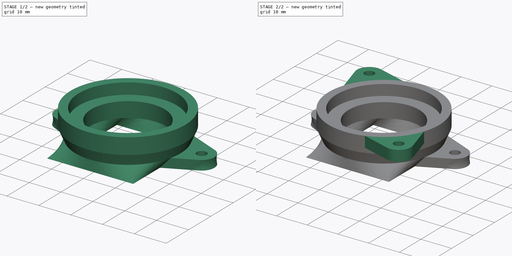
[diagram: build sequence overview — one tinted view per stage of 2, left to right]
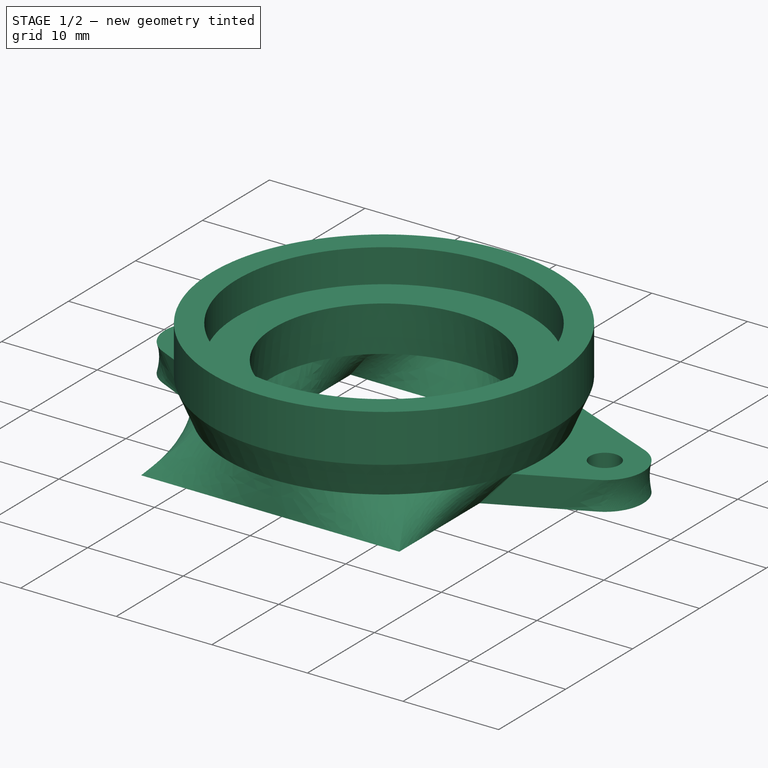
[diagram: stage 1 of 2 — iso view after this stage's code; geometry added in this stage tinted green]
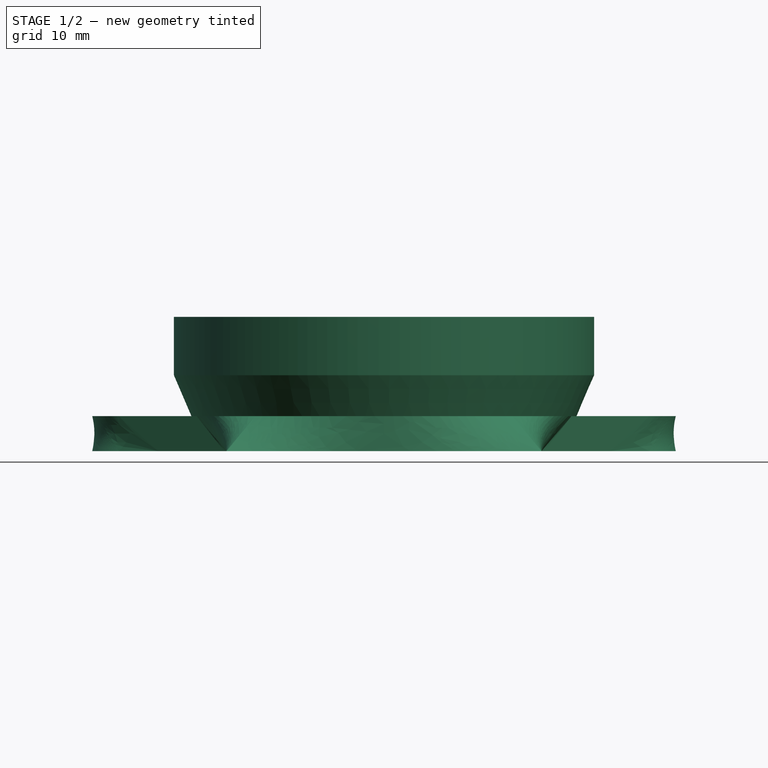
[diagram: stage 1 of 2 — front view after this stage's code; geometry added in this stage tinted green]
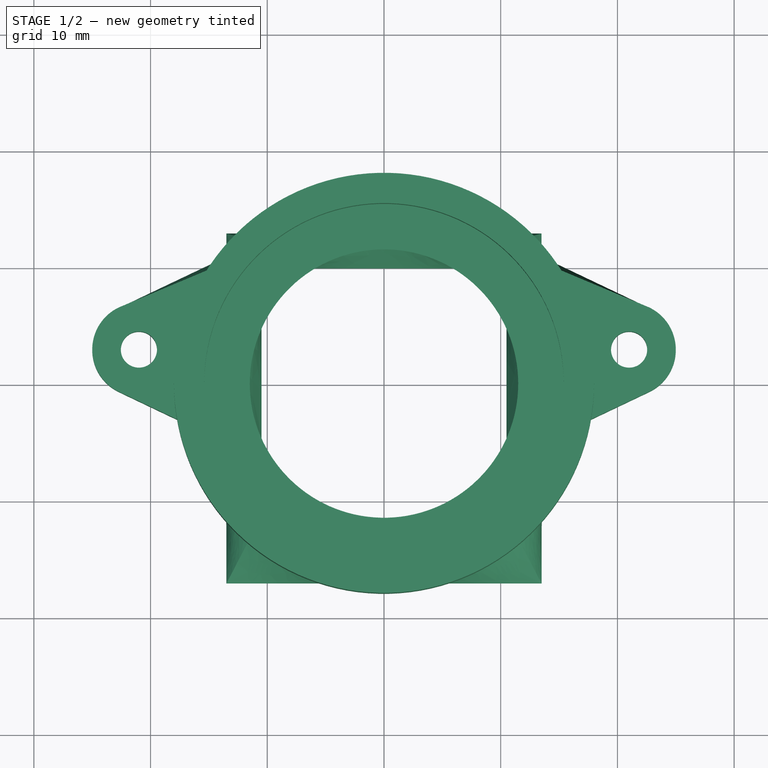
[diagram: stage 1 of 2 — top view after this stage's code; geometry added in this stage tinted green]
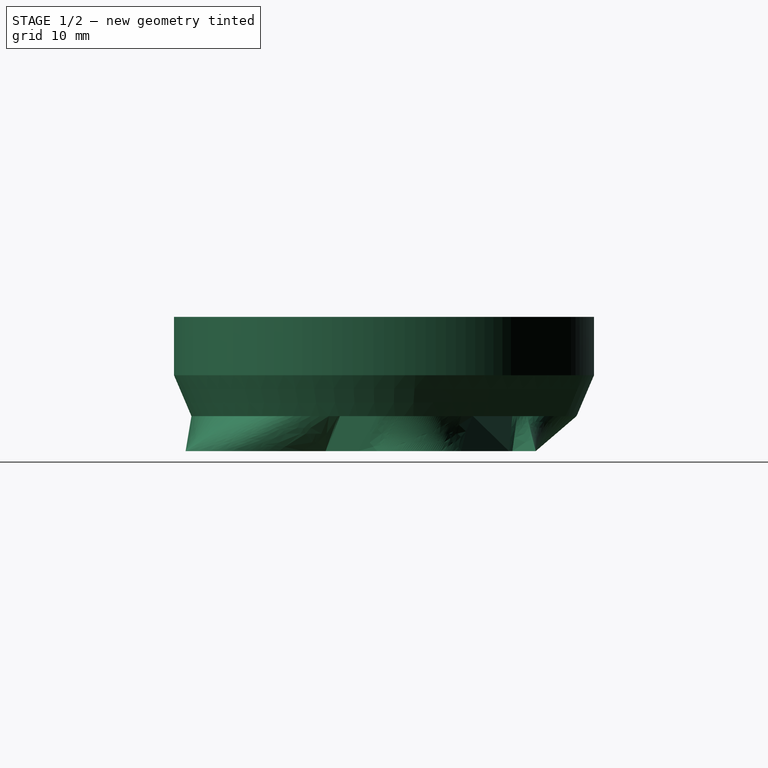
[diagram: stage 1 of 2 — right view after this stage's code; geometry added in this stage tinted green]
FCSTD DOCUMENT  (FreeCAD 0.21R33668 +26 (Git))
Label: 2_Chest_Motor_Cap
License: All rights reserved
LicenseURL: http://en.wikipedia.org/wiki/All_rights_reserved
objects: Sketcher::SketchObject×4, PartDesign::AdditiveLoft×1, PartDesign::Revolution×1, PartDesign::Pad×1, PartDesign::Body×1
note: 11 computed .brp shape members not serialized (recipe doc carries the construction recipe); baked Part::Feature solids carry a one-line shape summary decoded from their .brp

FEATURE [Sketcher::SketchObject] Sketch  label="base"
  FullyConstrained = true
  MapMode = 5
  Support = -> [XY_Plane]
  sketch-geometry (19):
    g0: LineSegment StartX=-10.5 StartY=-14 StartZ=0 EndX=10.5 EndY=-14 EndZ=0
    g1: LineSegment StartX=10.5 StartY=-14 StartZ=0 EndX=10.5 EndY=10 EndZ=0
    g2: LineSegment StartX=10.5 StartY=10 StartZ=0 EndX=-10.5 EndY=10 EndZ=0
    g3: LineSegment StartX=-10.5 StartY=10 StartZ=0 EndX=-10.5 EndY=-14 EndZ=0
    g4: LineSegment StartX=-13.5 StartY=-17 StartZ=0 EndX=13.5 EndY=-17 EndZ=0
    g5: LineSegment StartX=13.5 StartY=-17 StartZ=0 EndX=13.5 EndY=-5 EndZ=0
    g6: LineSegment StartX=13.5 StartY=13 StartZ=0 EndX=-13.5 EndY=13 EndZ=0
    g7: LineSegment StartX=-13.5 StartY=13 StartZ=0 EndX=-13.5 EndY=11 EndZ=0
    g8: LineSegment StartX=-13.5 StartY=11 StartZ=0 EndX=-22.7192 EndY=6.61171 EndZ=0
    g9: LineSegment StartX=-13.5 StartY=-5 StartZ=0 EndX=-22.7192 EndY=-0.611714 EndZ=0
    g10: LineSegment StartX=13.5 StartY=11 StartZ=0 EndX=22.7192 EndY=6.61171 EndZ=0
    g11: LineSegment StartX=13.5 StartY=-5 StartZ=0 EndX=22.7192 EndY=-0.611714 EndZ=0
    g12: ArcOfCircle CenterX=-21 CenterY=3 CenterZ=0 NormalX=0 NormalY=0 NormalZ=1 AngleXU=0 Radius=4 StartAngle=2.01506 EndAngle=4.26813
    g13: ArcOfCircle CenterX=21 CenterY=3 CenterZ=0 NormalX=0 NormalY=0 NormalZ=1 AngleXU=0 Radius=4 StartAngle=5.15665 EndAngle=7.40972
    g14: Circle CenterX=-21 CenterY=3 CenterZ=0 NormalX=0 NormalY=0 NormalZ=1 AngleXU=0 Radius=1.55
    g15: Circle CenterX=21 CenterY=3 CenterZ=0 NormalX=0 NormalY=0 NormalZ=1 AngleXU=0 Radius=1.55
    g16: LineSegment StartX=-13.5 StartY=-5 StartZ=0 EndX=-13.5 EndY=-17 EndZ=0
    g17: LineSegment StartX=13.5 StartY=11 StartZ=0 EndX=13.5 EndY=13 EndZ=0
    g18: LineSegment StartX=-21 StartY=3 StartZ=0 EndX=21 EndY=3 EndZ=0
  constraints (53):
    c: Coincident(g0,g1)
    c: Coincident(g1,g2)
    c: Coincident(g2,g3)
    c: Coincident(g3,g0)
    c: Horizontal(g2)
    c: Vertical(g1)
    c: Vertical(g3)
    c: Coincident(g4,g5)
    c: Coincident(g17,g6)
    c: Coincident(g6,g7)
    c: Coincident(g16,g4)
    c: Horizontal(g6)
    c: Vertical(g5)
    c: Vertical(g7)
    c: Coincident(g12,g8)
    c: Coincident(g13,g11)
    c: DistanceX(g4,g0) = 3
    c: DistanceY(g4,g0) = 3
    c: DistanceX(g6,g6) = 27
    c: Symmetric(g4,g4,g-2)
    c: Symmetric(g0,g0,g-2)
    c: DistanceY(g1,g17) = 3
    c: Coincident(g7,g8)
    c: Coincident(g16,g9)
    c: Coincident(g5,g11)
    c: Coincident(g17,g10)
    c: Vertical(g7,g9)
    c: Vertical(g10,g5)
    c: DistanceY(g4,g6) = 30
    c: Vertical(g17)
    c: Vertical(g16)
    c: DistanceY(g13,g6) = 10
    c: DistanceX(g12,g13) = 42
    c: Coincident(g18,g12)
    c: Coincident(g18,g13)
    c: Symmetric(g9,g7,g18)
    c: Symmetric(g9,g8,g18)
    c: DistanceY(g9,g7) = 16
    c: Horizontal(g7,g10)
    c: Horizontal(g9,g5)
    c: Equal(g14,g15)
    c: Diameter(g14) = 3.1
    c: Coincident(g14,g12)
    c: Coincident(g15,g13)
    c: Radius(g13) = 4
    c: Equal(g13,g12)
    c: Symmetric(g12,g13,g-2)
    c: DistanceY(g-1,g6) = 13
    c: Tangent(g12,g9) = 1.5708
    c: Horizontal(g11,g9)
    c: Tangent(g13,g10) = 1.5708
    c: Distance(g-1,g6) = 18.7417
    c: Distance(g-1,g4) = 21.7083
FEATURE [Sketcher::SketchObject] Sketch001  label="base top"
  AttachmentOffset = pos=(0,0,3) rot=(0,0,1;0rad)
  ExternalGeometry = -> [Sketch]
  FullyConstrained = true
  MapMode = 5
  Placement = pos=(0,0,3) rot=(0,0,1;0rad)
  Support = -> [XY_Plane]
  sketch-geometry (11):
    g0: Circle CenterX=0 CenterY=0 CenterZ=0 NormalX=0 NormalY=0 NormalZ=1 AngleXU=0 Radius=12
    g1: ArcOfCircle CenterX=0 CenterY=0 CenterZ=0 NormalX=0 NormalY=0 NormalZ=1 AngleXU=0 Radius=16.5 StartAngle=3.3728 EndAngle=6.05198
    g2: LineSegment StartX=-16.0609 StartY=-3.781 StartZ=0 EndX=-22.7192 EndY=-0.611714 EndZ=0
    g3: LineSegment StartX=-22.7192 StartY=6.61171 StartZ=0 EndX=-12.2984 EndY=11 EndZ=0
    g4: ArcOfCircle CenterX=-21 CenterY=3 CenterZ=0 NormalX=0 NormalY=0 NormalZ=1 AngleXU=0 Radius=4 StartAngle=2.01506 EndAngle=4.26813
    g5: LineSegment StartX=12.2984 StartY=11 StartZ=0 EndX=22.7192 EndY=6.61171 EndZ=0
    g6: LineSegment StartX=16.0609 StartY=-3.781 StartZ=0 EndX=22.7192 EndY=-0.611714 EndZ=0
    g7: ArcOfCircle CenterX=21 CenterY=3 CenterZ=0 NormalX=0 NormalY=0 NormalZ=1 AngleXU=0 Radius=4 StartAngle=5.15665 EndAngle=7.40972
    g8: Circle CenterX=-21 CenterY=3 CenterZ=0 NormalX=0 NormalY=0 NormalZ=1 AngleXU=0 Radius=1.55
    g9: Circle CenterX=21 CenterY=3 CenterZ=0 NormalX=0 NormalY=0 NormalZ=1 AngleXU=0 Radius=1.55
    g10: ArcOfCircle CenterX=0 CenterY=0 CenterZ=0 NormalX=0 NormalY=0 NormalZ=1 AngleXU=0 Radius=16.5 StartAngle=0.729728 EndAngle=2.41186
  constraints (28):
    c: Coincident(g0,g-1)
    c: Diameter(g0) = 24
    c: Coincident(g1,g0)
    c: Diameter(g1) = 33
    c: Coincident(g2,g-5)
    c: Coincident(g3,g-4)
    c: Coincident(g4,g2)
    c: Coincident(g4,g3)
    c: Coincident(g4,g-6)
    c: Parallel(g2,g-5)
    c: Horizontal(g-3,g3)
    c: Coincident(g10,g3)
    c: Coincident(g1,g2)
    c: Coincident(g5,g-8)
    c: Horizontal(g5,g-7)
    c: Coincident(g6,g-9)
    c: Parallel(g6,g-9)
    c: Coincident(g7,g5)
    c: Coincident(g7,g6)
    c: Coincident(g7,g-8)
    c: Coincident(g7,g9)
    c: Coincident(g4,g8)
    c: Equal(g8,g-6)
    c: Equal(g9,g8)
    c: Equal(g1,g10)
    c: Coincident(g1,g6)
    c: Coincident(g10,g5)
    c: Coincident(g1,g10)
FEATURE [PartDesign::AdditiveLoft] AdditiveLoft
  Closed = false
  Profile = -> Sketch
  Ruled = false
  Sections = -> [Sketch001]
FEATURE [Sketcher::SketchObject] Sketch002
  ExternalGeometry = -> [AdditiveLoft]
  FullyConstrained = true
  MapMode = 5
  Placement = pos=(0,0,0) rot=(1,0,0;1.5708rad)
  Support = -> [XZ_Plane]
  sketch-geometry (7):
    g0: LineSegment StartX=-16.5 StartY=3 StartZ=0 EndX=-12 EndY=3 EndZ=0
    g1: LineSegment StartX=-12 StartY=3 StartZ=0 EndX=-11.5 EndY=8 EndZ=0
    g2: LineSegment StartX=-11.5 StartY=8 StartZ=0 EndX=-15.4 EndY=8 EndZ=0
    g3: LineSegment StartX=-15.4 StartY=8 StartZ=0 EndX=-15.4 EndY=11.5 EndZ=0
    g4: LineSegment StartX=-15.4 StartY=11.5 StartZ=0 EndX=-18 EndY=11.5 EndZ=0
    g5: LineSegment StartX=-18 StartY=11.5 StartZ=0 EndX=-18 EndY=6.5 EndZ=0
    g6: LineSegment StartX=-16.5 StartY=3 StartZ=0 EndX=-18 EndY=6.5 EndZ=0
  constraints (24):
    c: Horizontal(g0)
    c: Horizontal(g2)
    c: Vertical(g5)
    c: Vertical(g3)
    c: Horizontal(g4)
    c: Coincident(g4,g3)
    c: Coincident(g4,g5)
    c: Coincident(g3,g2)
    c: Coincident(g1,g2)
    c: DistanceX(g3,g-1) = 15.4
    c: DistanceX(g4,g-1) = 18
    c: DistanceY(g3,g3) = 3.5
    c: DistanceY(g1,g1) = 5
    c: Coincident(g6,g0)
    c: Coincident(g6,g5)
    c: DistanceY(g0,g5) = 3.5
    c: DistanceX(g1,g-1) = 11.5
    c: Coincident(g1,g0)
    c: DistanceX(g0,g-1) = 12
    c: DistanceX(g0,g-1) = 16.5
    c: Horizontal(g0,g-3)
    c: DistanceY(g5,g5) = 5
    c: DistanceX(g0,g-1) = 16.5
    c: DistanceX(g0,g-1) = 12
FEATURE [PartDesign::Revolution] Revolution
  Angle = 360
  Axis = (0,-2e-16,1)
  Base = (0,0,0)
  BaseFeature = -> AdditiveLoft
  Profile = -> Sketch002
  ReferenceAxis = -> Sketch002 [V_Axis]
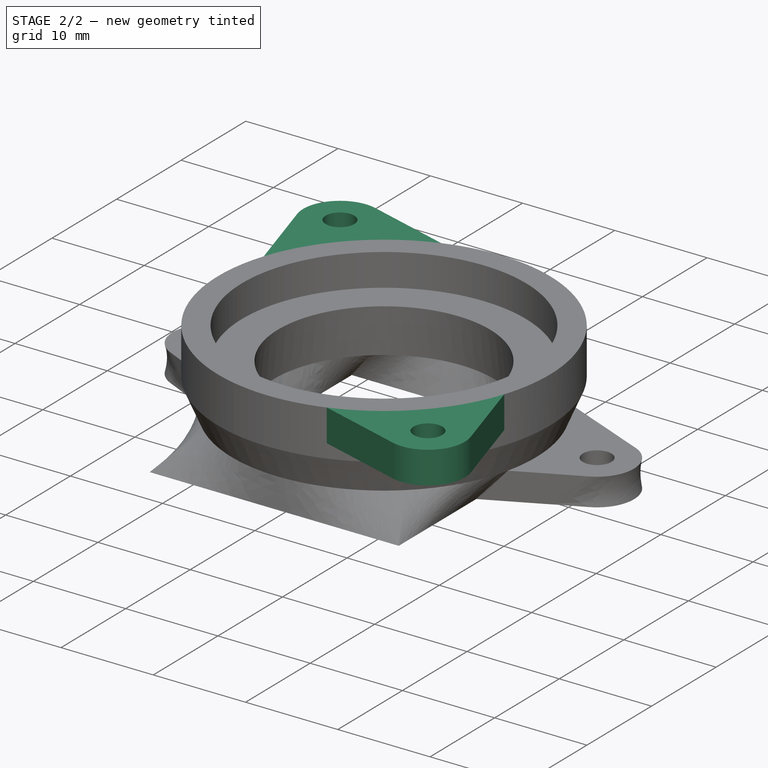
[diagram: stage 2 of 2 — iso view after this stage's code; geometry added in this stage tinted green]
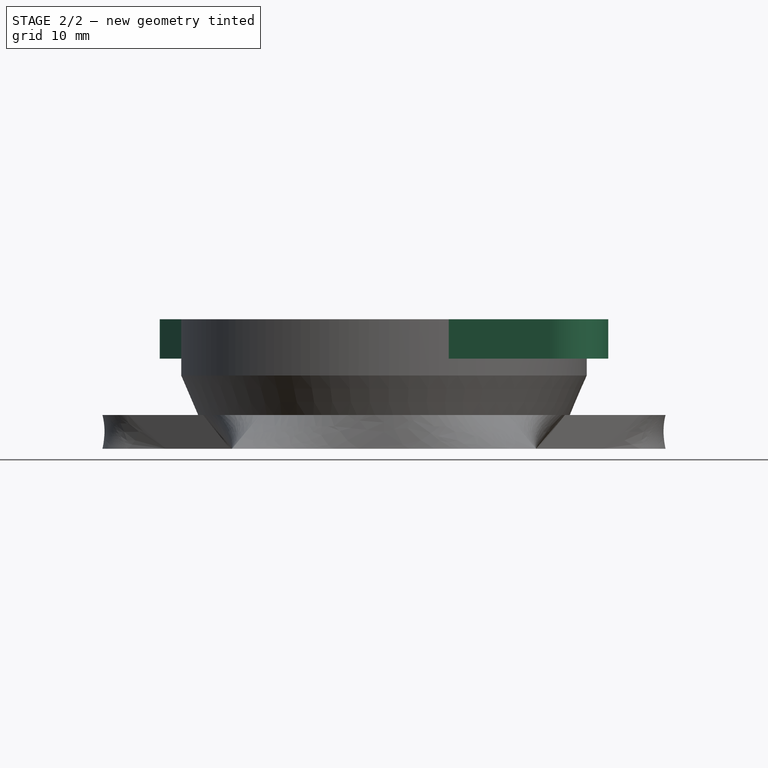
[diagram: stage 2 of 2 — front view after this stage's code; geometry added in this stage tinted green]
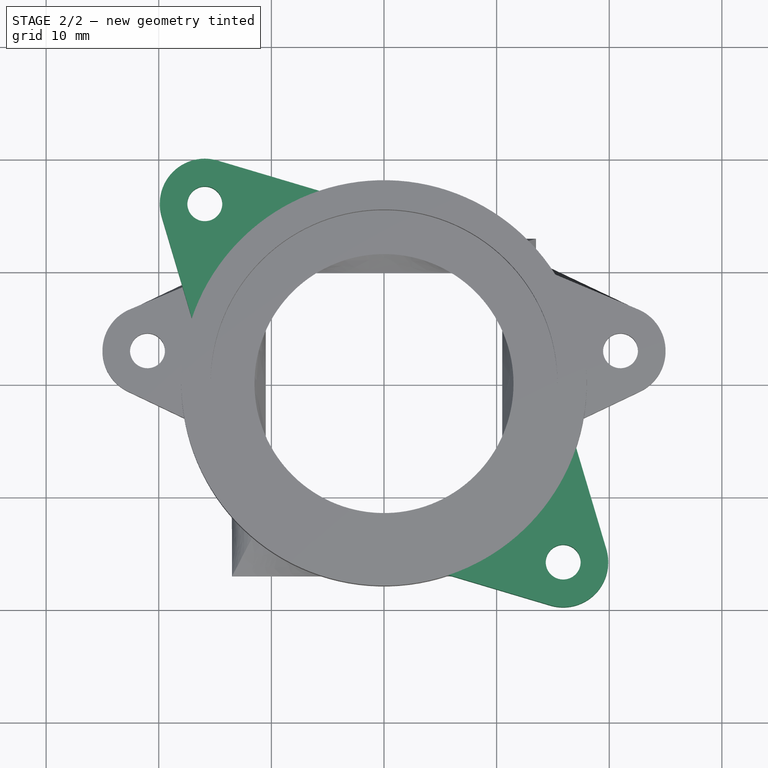
[diagram: stage 2 of 2 — top view after this stage's code; geometry added in this stage tinted green]
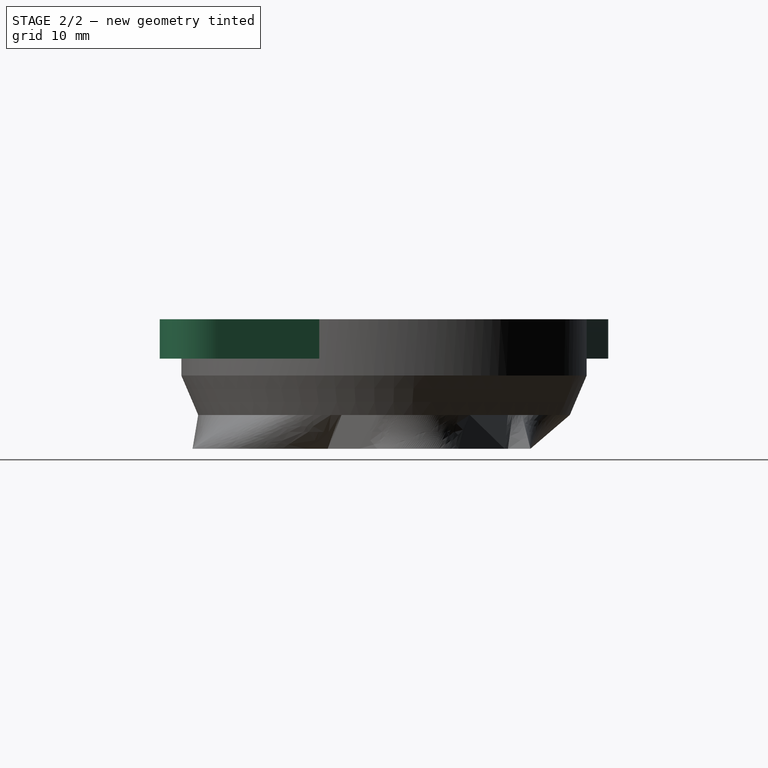
[diagram: stage 2 of 2 — right view after this stage's code; geometry added in this stage tinted green]
FEATURE [Sketcher::SketchObject] Sketch003
  ExternalGeometry = -> [Revolution]
  FullyConstrained = true
  MapMode = 5
  Placement = pos=(0,-2.6e-15,11.5) rot=(0,0,1;0rad)
  Support = -> [Revolution]
  sketch-geometry (11):
    g0: LineSegment StartX=15.9099 StartY=-15.9099 StartZ=0 EndX=-15.9099 EndY=15.9099 EndZ=0
    g1: Circle CenterX=-15.9099 CenterY=15.9099 CenterZ=0 NormalX=0 NormalY=0 NormalZ=1 AngleXU=0 Radius=1.55
    g2: ArcOfCircle CenterX=0 CenterY=0 CenterZ=0 NormalX=0 NormalY=0 NormalZ=1 AngleXU=0 Radius=18 StartAngle=1.89564 EndAngle=2.81675
    g3: LineSegment StartX=-17.0586 StartY=5.7449 StartZ=0 EndX=-19.7438 EndY=14.7691 EndZ=0
    g4: LineSegment StartX=-5.7449 StartY=17.0586 StartZ=0 EndX=-14.7691 EndY=19.7438 EndZ=0
    g5: ArcOfCircle CenterX=-15.9099 CenterY=15.9099 CenterZ=0 NormalX=0 NormalY=0 NormalZ=1 AngleXU=0 Radius=4 StartAngle=1.28159 EndAngle=3.4308
    g6: Circle CenterX=15.9099 CenterY=-15.9099 CenterZ=0 NormalX=0 NormalY=0 NormalZ=1 AngleXU=0 Radius=1.55
    g7: ArcOfCircle CenterX=0 CenterY=0 CenterZ=0 NormalX=0 NormalY=0 NormalZ=1 AngleXU=0 Radius=18 StartAngle=5.03723 EndAngle=5.95834
    g8: LineSegment StartX=5.7449 StartY=-17.0586 StartZ=0 EndX=14.7691 EndY=-19.7438 EndZ=0
    g9: LineSegment StartX=17.0586 StartY=-5.7449 StartZ=0 EndX=19.7438 EndY=-14.7691 EndZ=0
    g10: ArcOfCircle CenterX=15.9099 CenterY=-15.9099 CenterZ=0 NormalX=0 NormalY=0 NormalZ=1 AngleXU=0 Radius=4 StartAngle=4.42318 EndAngle=6.57239
  constraints (27):
    c: Symmetric(g0,g0,g-1)
    c: Angle(g0,g-1) = 0.785398
    c: Distance(g0) = 45
    c: Coincident(g1,g0)
    c: Coincident(g2,g-3)
    c: PointOnObject(g2,g-3)
    c: Coincident(g3,g2)
    c: Coincident(g4,g2)
    c: Coincident(g5,g1)
    c: Coincident(g6,g0)
    c: Coincident(g7,g2)
    c: PointOnObject(g7,g-3)
    c: Coincident(g8,g7)
    c: Coincident(g9,g7)
    c: Coincident(g10,g6)
    c: Equal(g3,g4)
    c: Tangent(g5,g3) = 1.5708
    c: Tangent(g5,g4) = -1.5708
    c: Equal(g8,g9)
    c: Tangent(g10,g8) = -1.5708
    c: Tangent(g9,g10) = 1.5708
    c: Distance(g2,g2) = 16
    c: Diameter(g5) = 8
    c: Diameter(g1) = 3.1
    c: Equal(g1,g6)
    c: Distance(g7,g7) = 16
    c: Equal(g10,g5)
FEATURE [PartDesign::Pad] Pad
  BaseFeature = -> Revolution
  Direction = (0,-2e-16,1)
  Length = 3.5
  Length2 = 10
  Profile = -> Sketch003
  ReferenceAxis = -> Sketch003 [N_Axis]
  Reversed = true
  Type = 0
FEATURE [PartDesign::Body] Body
  Group = -> [Sketch,Sketch001,AdditiveLoft,Sketch002,Revolution,Sketch003,Pad]
  Origin = -> Origin
  Tip = -> Pad
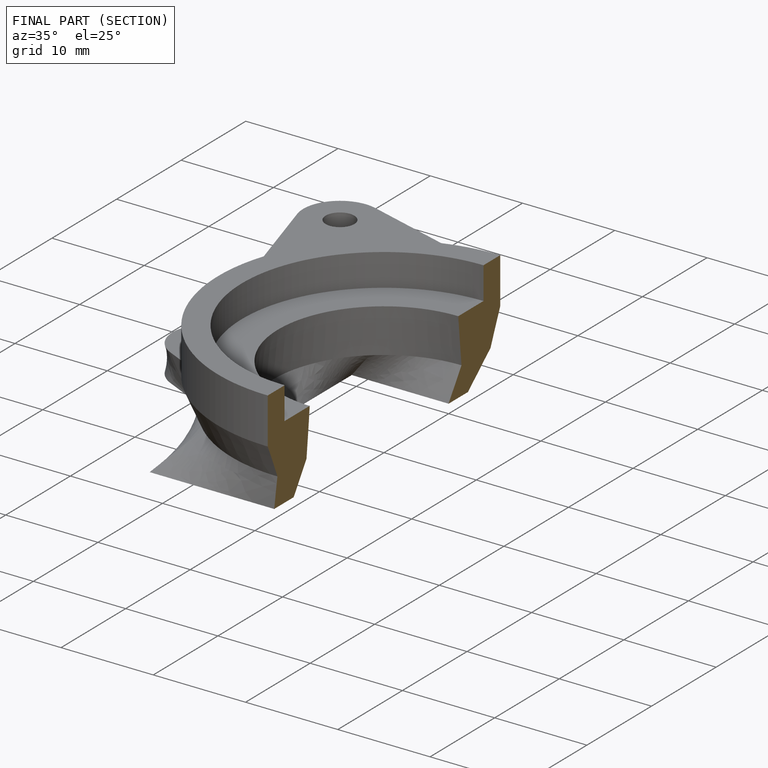
[diagram: finished part — half-section view (interior)]
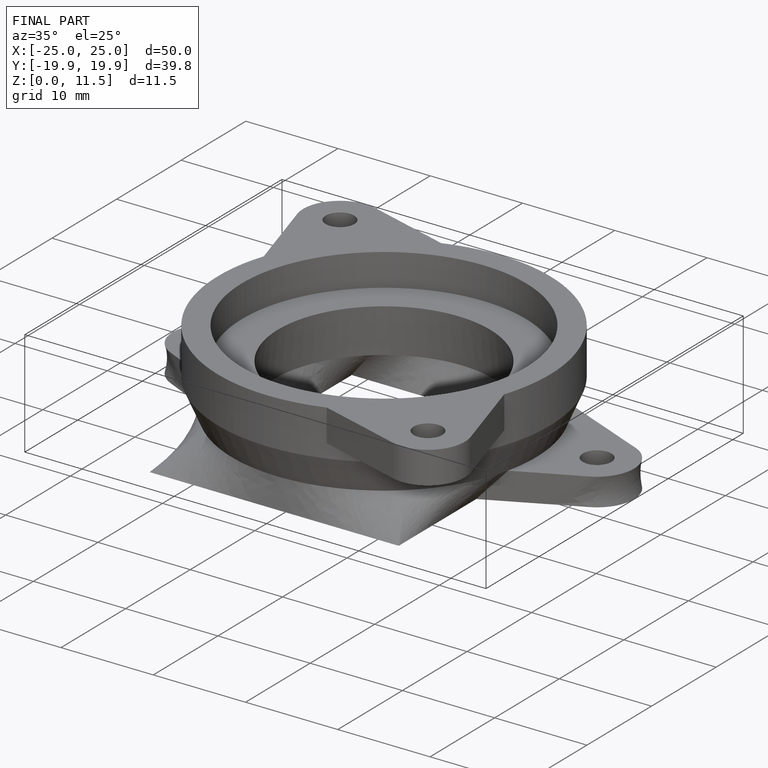
[diagram: finished part — iso view with bounding-box wireframe]
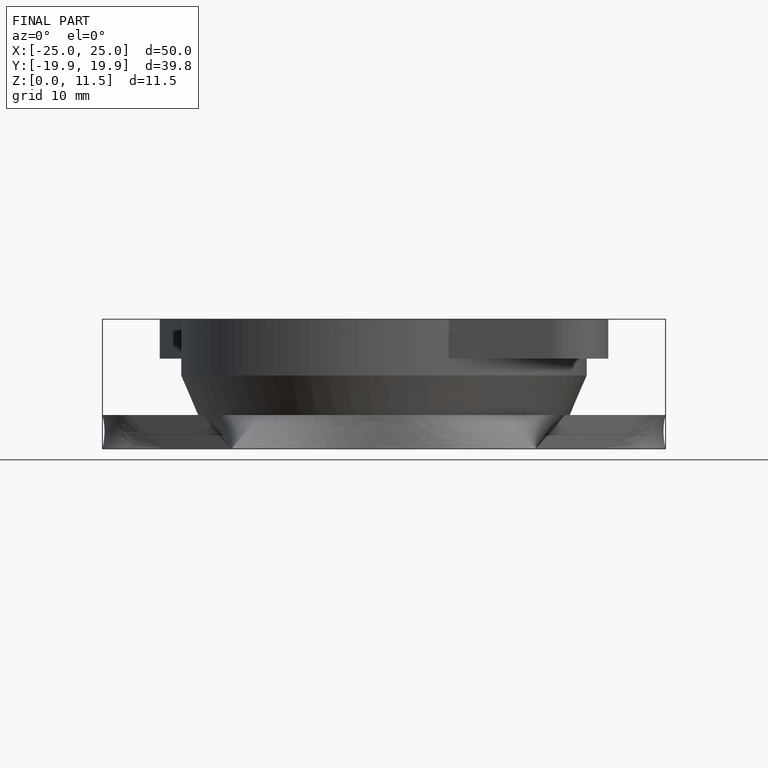
[diagram: finished part — front view with bounding-box wireframe]
